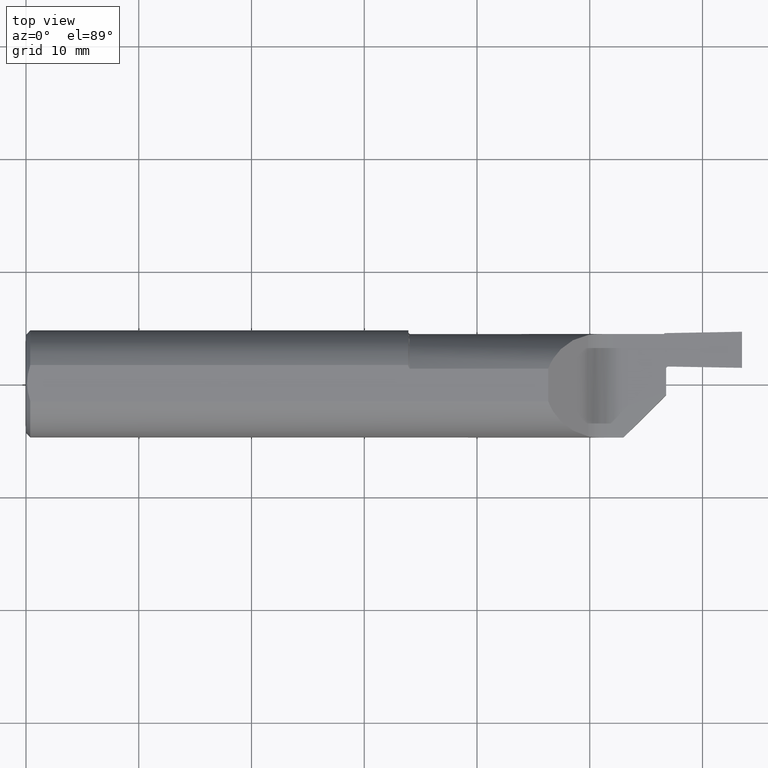
[diagram: clean part render]
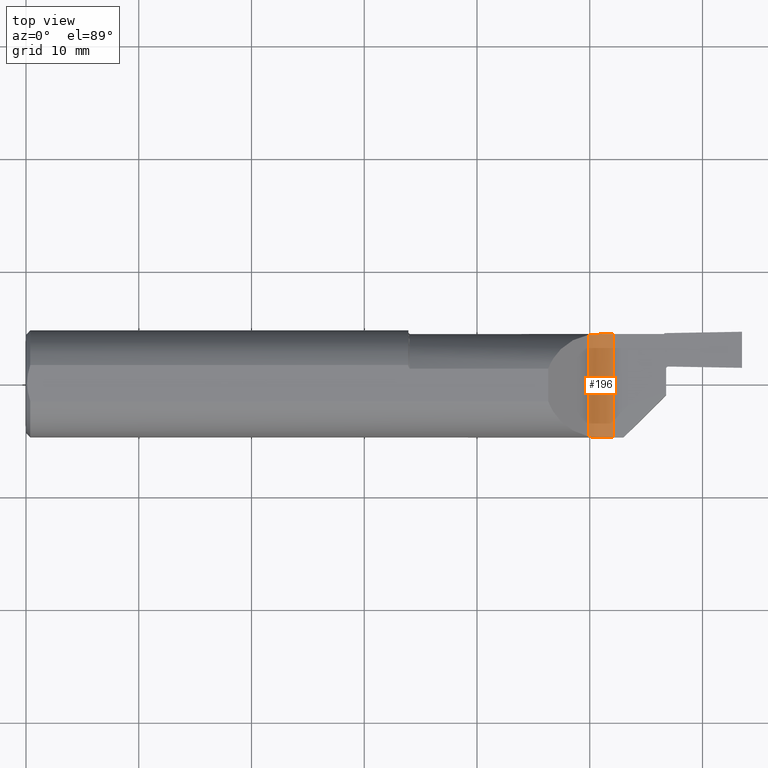
[diagram: same view with one face highlighted and labeled with its STEP entity id]
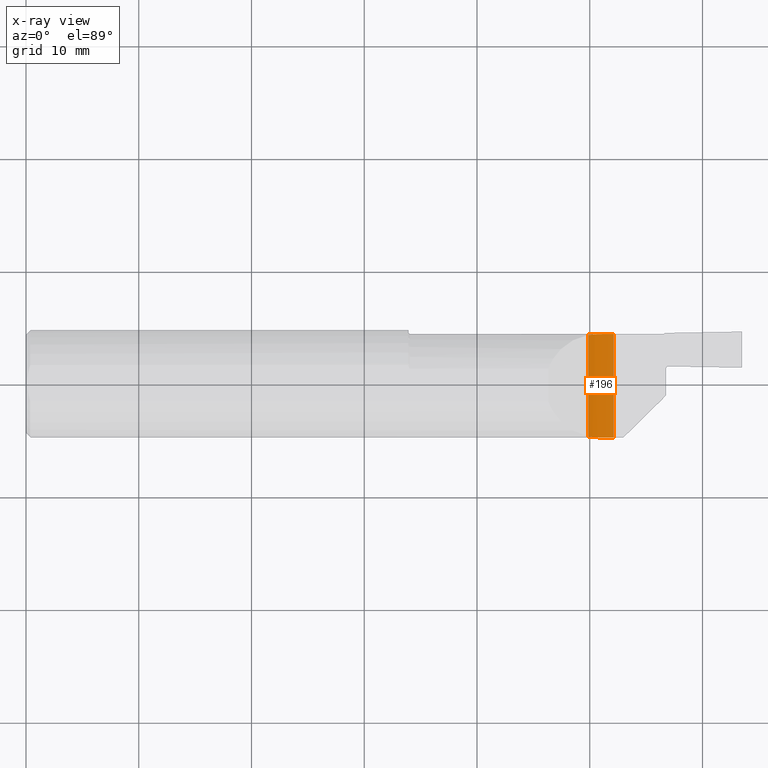
[diagram: x-ray of the same camera — body ghosted, the highlighted face saturated]
A machine part, top view. The second image highlights one B-rep face of the part: STEP entity #196.
The next image is the same camera in x-ray: the body ghosted, the highlighted face saturated — about 0% of this face is hidden behind the body in this view.
In plain terms, the highlighted cylindrical surface (edge-blend (fillet) strip) has radius 3.175 mm, axis along (0, 1, 0).
Its self-contained STEP definition (entity closure, byte-faithful):
#15 = VERTEX_POINT ( 'NONE', #43 ) ;
#17 = CARTESIAN_POINT ( 'NONE',  ( 1.988965638552542048, 0.1736665399885003735, 0.01662166336216465423 ) ) ;
#36 = LINE ( 'NONE', #375, #550 ) ;
#43 = CARTESIAN_POINT ( 'NONE',  ( 1.963388347648318932, -0.1837378823544007778, 0.03661165235168151871 ) ) ;
#62 = CARTESIAN_POINT ( 'NONE',  ( 1.963388347648318932, -0.1837378823544007778, 0.03661165235168151871 ) ) ;
#89 = EDGE_CURVE ( 'NONE', #15, #275, #36, .T. ) ;
#113 = ORIENTED_EDGE ( 'NONE', *, *, #617, .F. ) ;
#114 = CARTESIAN_POINT ( 'NONE',  ( 1.975584630924563934, -0.1856528012981897013, 0.02557015768846747708 ) ) ;
#117 = CARTESIAN_POINT ( 'NONE',  ( 2.035390929681094807, -0.1873549854116181856, 0.0008110107679984991354 ) ) ;
#150 = CARTESIAN_POINT ( 'NONE',  ( 1.963388347648318710, 0.1707400671470789555, 0.03661165235168143545 ) ) ;
#154 = EDGE_CURVE ( 'NONE', #352, #838, #315, .T. ) ;
#175 = B_SPLINE_CURVE_WITH_KNOTS ( 'NONE', 3,
 ( #461, #713, #117, #853, #250, #398, #508, #114, #311, #62 ),
 .UNSPECIFIED., .F., .F.,
 ( 4, 2, 2, 2, 4 ),
 ( 0.000000000000000000, 0.0006206708188418187102, 0.001241341637683637420, 0.001862012456525456022, 0.002482683275367274841 ),
 .UNSPECIFIED. ) ;
#186 = DIRECTION ( 'NONE',  ( 0.000000000000000000, 1.000000000000000000, 0.000000000000000000 ) ) ;
#196 = ADVANCED_FACE ( 'NONE', ( #653 ), #591, .F. ) ;
#250 = CARTESIAN_POINT ( 'NONE',  ( 2.011462618758882659, -0.1872671557635287864, 0.006396047567269131165 ) ) ;
#253 = CARTESIAN_POINT ( 'NONE',  ( 2.051776695296636976, -0.1873499999999999888, 0.000000000000000000 ) ) ;
#269 = CARTESIAN_POINT ( 'NONE',  ( 1.963388347648318710, 0.1707400671470789555, 0.03661165235168143545 ) ) ;
#275 = VERTEX_POINT ( 'NONE', #150 ) ;
#311 = CARTESIAN_POINT ( 'NONE',  ( 1.969176586392017869, -0.1848912481268661367, 0.03082341360798270674 ) ) ;
#315 = LINE ( 'NONE', #462, #481 ) ;
#322 = DIRECTION ( 'NONE',  ( -0.000000000000000000, -1.000000000000000000, -0.000000000000000000 ) ) ;
#339 = CARTESIAN_POINT ( 'NONE',  ( 2.011402846495882635, 0.1742657643842316917, 0.006416841385945341175 ) ) ;
#352 = VERTEX_POINT ( 'NONE', #831 ) ;
#375 = CARTESIAN_POINT ( 'NONE',  ( 1.963388347648318932, 0.2873499999999999943, 0.03661165235168144932 ) ) ;
#398 = CARTESIAN_POINT ( 'NONE',  ( 1.996326790910569082, -0.1869473204897925123, 0.01267266404239195815 ) ) ;
#403 = CARTESIAN_POINT ( 'NONE',  ( 1.975456747076115072, 0.1726394736848242961, 0.02567045653326192542 ) ) ;
#412 = CARTESIAN_POINT ( 'NONE',  ( 2.019197208109889896, 0.1743125433629941212, 0.004042964882075225815 ) ) ;
#426 = ORIENTED_EDGE ( 'NONE', *, *, #89, .F. ) ;
#461 = CARTESIAN_POINT ( 'NONE',  ( 2.051776695296636976, -0.1873499999999999888, 0.000000000000000000 ) ) ;
#462 = CARTESIAN_POINT ( 'NONE',  ( 2.051776695296636976, -0.2873499999999999943, 0.000000000000000000 ) ) ;
#481 = VECTOR ( 'NONE', #322, 39.37007874015748143 ) ;
#508 = CARTESIAN_POINT ( 'NONE',  ( 1.989151228518893477, -0.1866765615736736272, 0.01651232730745808355 ) ) ;
#509 = CARTESIAN_POINT ( 'NONE',  ( 2.051776695296636976, 0.2873499999999999943, 0.1250000000000000000 ) ) ;
#512 = B_SPLINE_CURVE_WITH_KNOTS ( 'NONE', 3,
 ( #269, #601, #403, #17, #802, #339, #412, #809, #745, #665 ),
 .UNSPECIFIED., .F., .F.,
 ( 4, 2, 2, 2, 4 ),
 ( 0.000000000000000000, 0.0006203411018093670914, 0.001240682203618734183, 0.001861023305428101274, 0.002481364407237468366 ),
 .UNSPECIFIED. ) ;
#531 = EDGE_LOOP ( 'NONE', ( #719, #426, #113, #672 ) ) ;
#550 = VECTOR ( 'NONE', #776, 39.37007874015748143 ) ;
#591 = CYLINDRICAL_SURFACE ( 'NONE', #709, 0.1250000000000000000 ) ;
#601 = CARTESIAN_POINT ( 'NONE',  ( 1.969175886172399359, 0.1718923342275688881, 0.03082411382760028365 ) ) ;
#617 = EDGE_CURVE ( 'NONE', #838, #15, #175, .T. ) ;
#653 = FACE_OUTER_BOUND ( 'NONE', #531, .T. ) ;
#665 = CARTESIAN_POINT ( 'NONE',  ( 2.051776695296636976, 0.1743492383597801954, 0.000000000000000000 ) ) ;
#667 = DIRECTION ( 'NONE',  ( 0.000000000000000000, 0.000000000000000000, 1.000000000000000000 ) ) ;
#672 = ORIENTED_EDGE ( 'NONE', *, *, #154, .F. ) ;
#688 = EDGE_CURVE ( 'NONE', #275, #352, #512, .T. ) ;
#709 = AXIS2_PLACEMENT_3D ( 'NONE', #509, #186, #667 ) ;
#713 = CARTESIAN_POINT ( 'NONE',  ( 2.043515043950825838, -0.1873499999999999888, 3.001297844601850477E-19 ) ) ;
#719 = ORIENTED_EDGE ( 'NONE', *, *, #688, .F. ) ;
#745 = CARTESIAN_POINT ( 'NONE',  ( 2.043518208465806119, 0.1743492383597801954, 2.337677543406552558E-17 ) ) ;
#776 = DIRECTION ( 'NONE',  ( 0.000000000000000000, 1.000000000000000000, 0.000000000000000000 ) ) ;
#802 = CARTESIAN_POINT ( 'NONE',  ( 1.996282164411133930, 0.1739453693091478070, 0.01269519059421281813 ) ) ;
#809 = CARTESIAN_POINT ( 'NONE',  ( 2.035252298051418052, 0.1743543119172814015, 0.0008268482096370641460 ) ) ;
#831 = CARTESIAN_POINT ( 'NONE',  ( 2.051776695296636976, 0.1743492383597801954, 0.000000000000000000 ) ) ;
#838 = VERTEX_POINT ( 'NONE', #253 ) ;
#853 = CARTESIAN_POINT ( 'NONE',  ( 2.019406815221594709, -0.1873142647345006628, 0.003989301195303232572 ) ) ;